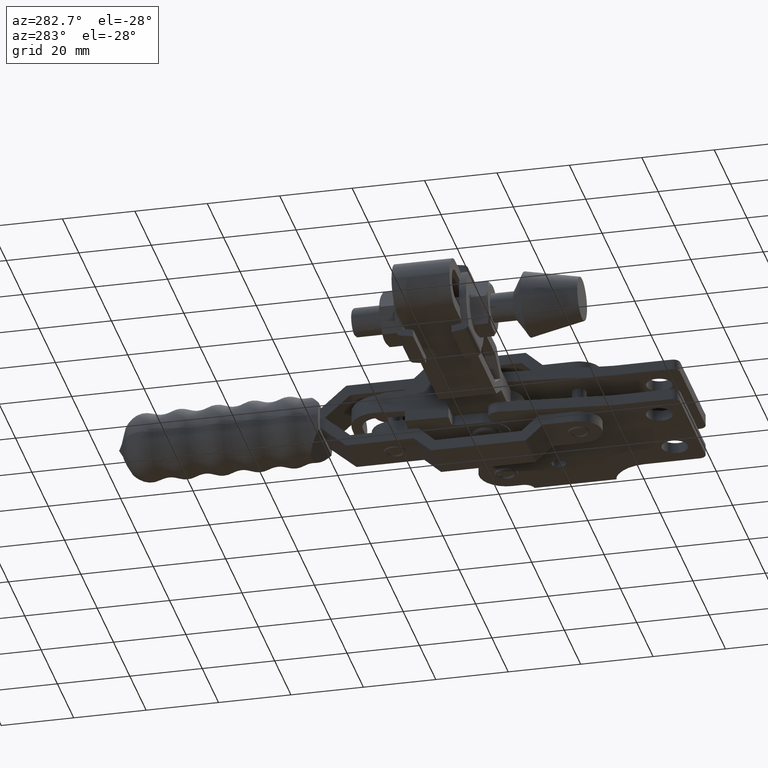
[diagram: clean part render]
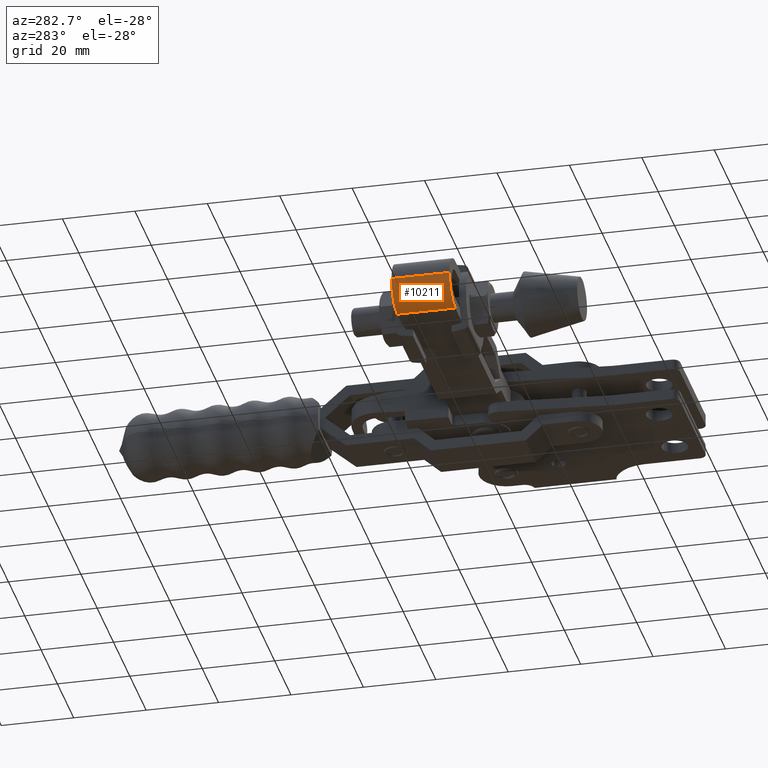
[diagram: same view with one face highlighted and labeled with its STEP entity id]
A machine part, auxiliary view. The second image highlights one B-rep face of the part: STEP entity #10211.
In plain terms, the highlighted cylindrical surface (edge-blend (fillet) strip) has radius 7.15 mm, axis along (0, -1, 0).
Its self-contained STEP definition (entity closure, byte-faithful):
#44 = VERTEX_POINT ( 'NONE', #1398 ) ;
#259 = DIRECTION ( 'NONE',  ( 0.0000000000000000000, -1.000000000000000000, 1.914408056403607400E-018 ) ) ;
#968 = DIRECTION ( 'NONE',  ( -1.000000000000000000, 0.0000000000000000000, 6.244988381752338800E-016 ) ) ;
#1207 = EDGE_CURVE ( 'NONE', #1848, #44, #6901, .T. ) ;
#1230 = VECTOR ( 'NONE', #5872, 1000.000000000000000 ) ;
#1398 = CARTESIAN_POINT ( 'NONE',  ( -117.1864158414750800, 31.80000000000198000, 7.260779824824860500E-014 ) ) ;
#1848 = VERTEX_POINT ( 'NONE', #4837 ) ;
#2239 = CIRCLE ( 'NONE', #7594, 7.150000000000086500 ) ;
#2659 = CARTESIAN_POINT ( 'NONE',  ( -110.0364158414750100, 47.80000000000025300, 6.812731629084440700E-014 ) ) ;
#2873 = ORIENTED_EDGE ( 'NONE', *, *, #8392, .F. ) ;
#2903 = CARTESIAN_POINT ( 'NONE',  ( -110.0364158414750100, 50.30000000000010400, -7.150000000000018100 ) ) ;
#3645 = DIRECTION ( 'NONE',  ( 1.000000000000000000, -6.793322703125875600E-015, -6.244988381752338800E-016 ) ) ;
#3778 = VERTEX_POINT ( 'NONE', #5773 ) ;
#3813 = EDGE_LOOP ( 'NONE', ( #6451, #2873, #4505, #8491 ) ) ;
#3919 = AXIS2_PLACEMENT_3D ( 'NONE', #2659, #9583, #3645 ) ;
#4505 = ORIENTED_EDGE ( 'NONE', *, *, #7401, .T. ) ;
#4837 = CARTESIAN_POINT ( 'NONE',  ( -117.1864158414750800, 47.80000000000030300, 7.260779824824860500E-014 ) ) ;
#5028 = AXIS2_PLACEMENT_3D ( 'NONE', #12819, #10849, #968 ) ;
#5773 = CARTESIAN_POINT ( 'NONE',  ( -110.0364158414750100, 47.80000000000025300, -7.150000000000018100 ) ) ;
#5872 = DIRECTION ( 'NONE',  ( 0.0000000000000000000, -1.000000000000000000, 1.914408056403607400E-018 ) ) ;
#6202 = CARTESIAN_POINT ( 'NONE',  ( -110.0364158414750100, 31.80000000000198000, 6.815794681974685500E-014 ) ) ;
#6451 = ORIENTED_EDGE ( 'NONE', *, *, #1207, .F. ) ;
#6901 = LINE ( 'NONE', #12735, #9227 ) ;
#7211 = DIRECTION ( 'NONE',  ( -1.000000000000000000, 0.0000000000000000000, 6.244988381752338800E-016 ) ) ;
#7401 = EDGE_CURVE ( 'NONE', #3778, #7807, #9130, .T. ) ;
#7594 = AXIS2_PLACEMENT_3D ( 'NONE', #6202, #259, #7211 ) ;
#7807 = VERTEX_POINT ( 'NONE', #11500 ) ;
#8392 = EDGE_CURVE ( 'NONE', #3778, #1848, #8648, .T. ) ;
#8491 = ORIENTED_EDGE ( 'NONE', *, *, #9106, .F. ) ;
#8648 = CIRCLE ( 'NONE', #3919, 7.150000000000086500 ) ;
#9011 = FACE_OUTER_BOUND ( 'NONE', #3813, .T. ) ;
#9106 = EDGE_CURVE ( 'NONE', #44, #7807, #2239, .T. ) ;
#9130 = LINE ( 'NONE', #2903, #1230 ) ;
#9227 = VECTOR ( 'NONE', #11785, 1000.000000000000000 ) ;
#9583 = DIRECTION ( 'NONE',  ( 6.475452256180996100E-015, 1.000000000000000000, -1.914408056407651500E-018 ) ) ;
#10211 = ADVANCED_FACE ( 'NONE', ( #9011 ), #11053, .T. ) ;
#10849 = DIRECTION ( 'NONE',  ( 0.0000000000000000000, -1.000000000000000000, 1.914408056403607400E-018 ) ) ;
#11053 = CYLINDRICAL_SURFACE ( 'NONE', #5028, 7.150000000000086500 ) ;
#11500 = CARTESIAN_POINT ( 'NONE',  ( -110.0364158414750100, 31.80000000000198000, -7.150000000000018100 ) ) ;
#11785 = DIRECTION ( 'NONE',  ( 0.0000000000000000000, -1.000000000000000000, 1.914408056403607400E-018 ) ) ;
#12735 = CARTESIAN_POINT ( 'NONE',  ( -117.1864158414750800, 50.30000000000010400, 7.258769696365637100E-014 ) ) ;
#12819 = CARTESIAN_POINT ( 'NONE',  ( -110.0364158414750100, 50.30000000000010400, 6.812253027070340300E-014 ) ) ;